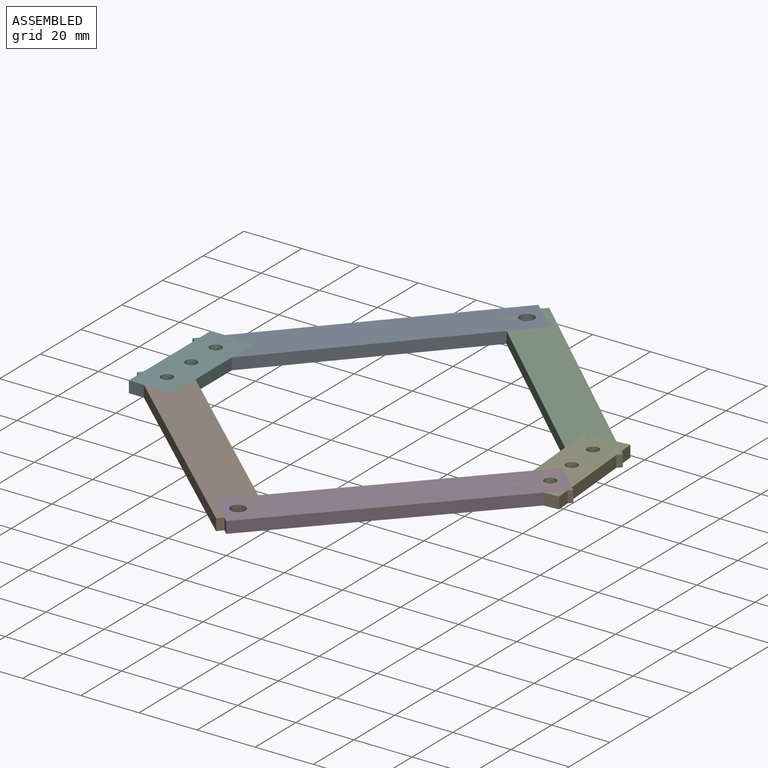
[diagram: assembled view]
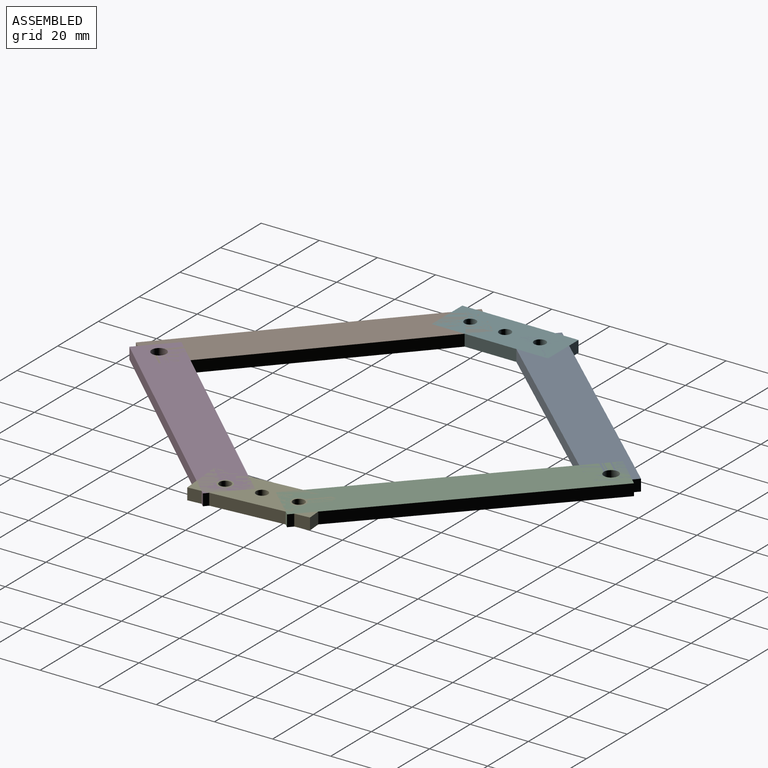
[diagram: assembled view, second angle]
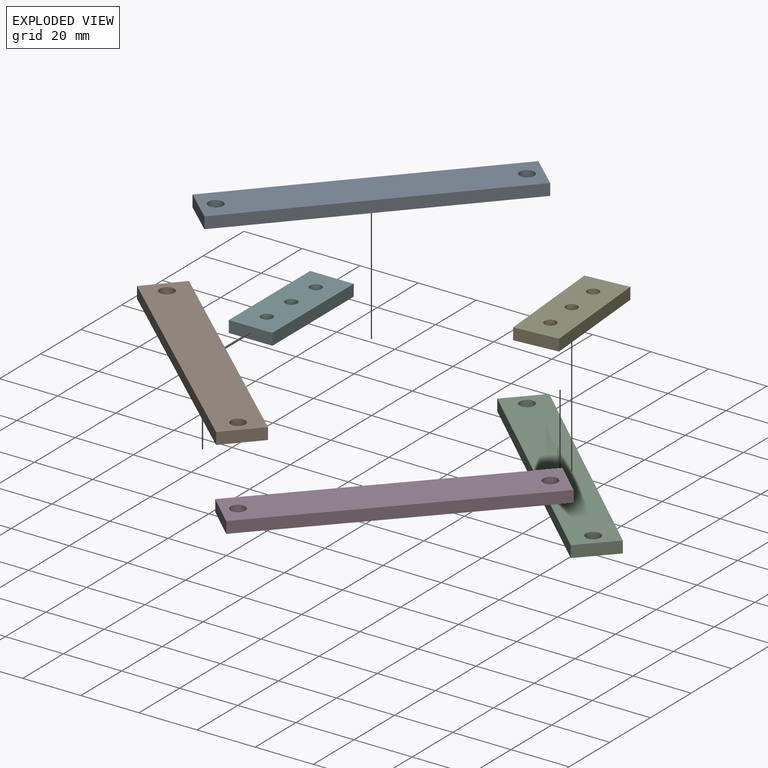
[diagram: exploded view]
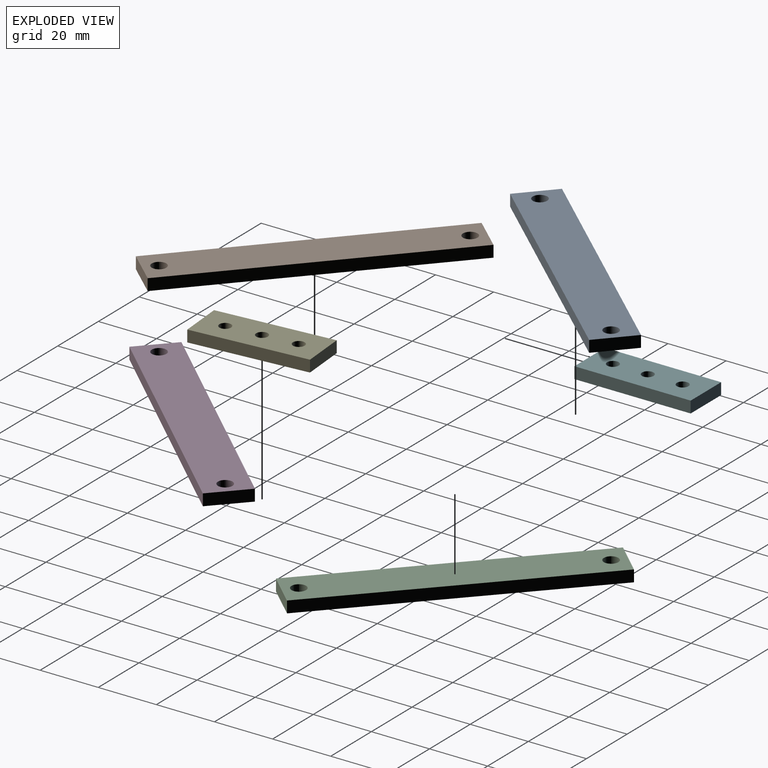
[diagram: exploded view, second angle]
ASSEMBLY  parts=6 mates=6
PART A: 8 faces, bbox 100x15x4 mm
  f0: plane 100x4mm, normal (0,1,0), area 400mm2, adj f1,f5,f6,f7
  f1: plane 15x4mm, normal (-1,0,0), area 60mm2, adj f0,f2,f6,f7
  f2: plane 100x4mm, normal (0,-1,0), area 400mm2, adj f1,f5,f6,f7
  f3: cylinder r=2.5mm len=5mm, axis (0,0,-1), area 62.8mm2, adj f6,f7
  f4: cylinder r=2.5mm len=5mm, axis (0,0,-1), area 62.8mm2, adj f6,f7
  f5: plane 15x4mm, normal (1,0,0), area 60mm2, adj f0,f2,f6,f7
  f6: plane 100x15mm, normal (0,0,1), area 1460.7mm2, adj f0,f1,f2,f3,f4,f5
  f7: plane 100x15mm, normal (0,0,-1), area 1460.7mm2, adj f0,f1,f2,f3,f4,f5
PART B: same geometry as A
PART C: same geometry as A
PART D: same geometry as A
PART E: 9 faces, bbox 15x40x4 mm
  f0: plane 15x4mm, normal (0,1,0), area 60mm2, adj f1,f6,f7,f8
  f1: plane 40x4mm, normal (-1,0,0), area 160mm2, adj f0,f2,f7,f8
  f2: plane 15x4mm, normal (0,-1,0), area 60mm2, adj f1,f6,f7,f8
  f3: cylinder r=2mm len=4mm, axis (0,0,-1), area 50.3mm2, adj f7,f8
  f4: cylinder r=2mm len=4mm, axis (0,0,-1), area 50.3mm2, adj f7,f8
  f5: cylinder r=2mm len=4mm, axis (0,0,-1), area 50.3mm2, adj f7,f8
  f6: plane 40x4mm, normal (1,0,0), area 160mm2, adj f0,f2,f7,f8
  f7: plane 40x15mm, normal (0,0,1), area 562.3mm2, adj f0,f1,f2,f3,f4,f5,f6
  f8: plane 40x15mm, normal (0,0,-1), area 562.3mm2, adj f0,f1,f2,f3,f4,f5,f6
PART F: same geometry as E
PLACE A rot(axis=(0,0,1),47.9deg) t=(30.18,45.38,-4)mm
PLACE B rot(axis=(0,0,-1),42.1deg) t=(33.38,-42.18,-4)mm
PLACE C rot(axis=(0,0,-1),43deg) t=(93.26,48.04,-4)mm
PLACE D rot(axis=(0,0,-1),133deg) t=(97.46,-39.48,-4)mm
PLACE E rot(axis=(0,0,-1),175.2deg) t=(127.16,5.37,-4)mm
PLACE F t=(0,0,-4)mm
MATE revolute C.f3 <-> A.f4  axis (0,0,1) through (60.37,78.75,0)mm
MATE revolute C.f4 <-> E.f4  axis (0,0,1) through (126.15,17.33,0)mm
MATE revolute D.f4 <-> B.f4  axis (0,0,1) through (66.75,-72.37,0)mm
MATE revolute B.f3 <-> F.f4  axis (0,0,1) through (0,-12,0)mm
MATE revolute A.f3 <-> F.f3  axis (0,0,1) through (0,12,0)mm
MATE revolute D.f3 <-> E.f3  axis (0,0,1) through (128.17,-6.59,0)mm
